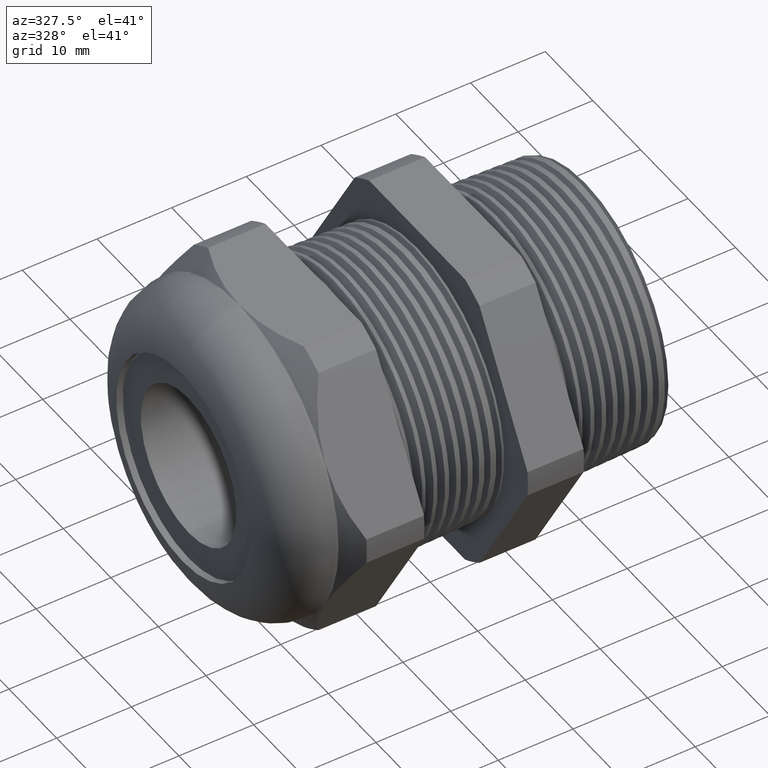
[diagram: clean part render]
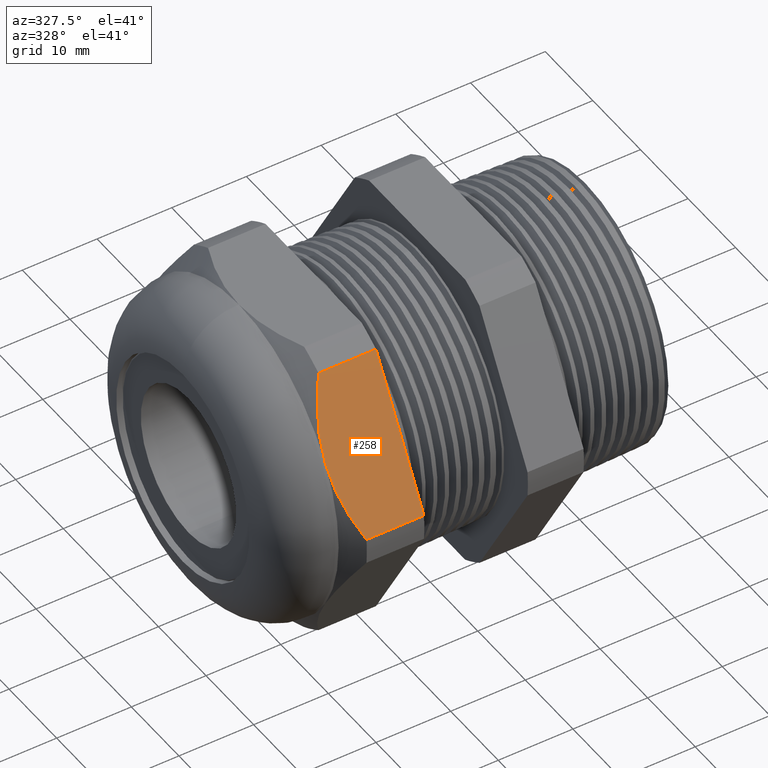
[diagram: same view with one face highlighted and labeled with its STEP entity id]
A machine part, auxiliary view. The second image highlights one B-rep face of the part: STEP entity #258.
In plain terms, the highlighted planar face has unit normal (0, -0.866, 0.5).
Its self-contained STEP definition (entity closure, byte-faithful):
#210 = VERTEX_POINT ( 'NONE', #1764 ) ;
#245 = ORIENTED_EDGE ( 'NONE', *, *, #691, .T. ) ;
#253 = EDGE_CURVE ( 'NONE', #304, #210, #1858, .T. ) ;
#254 = EDGE_LOOP ( 'NONE', ( #255, #256, #245, #672, #661 ) ) ;
#255 = ORIENTED_EDGE ( 'NONE', *, *, #368, .T. ) ;
#256 = ORIENTED_EDGE ( 'NONE', *, *, #253, .T. ) ;
#258 = ADVANCED_FACE ( 'NONE', ( #1857 ), #1841, .T. ) ;
#289 = VERTEX_POINT ( 'NONE', #1951 ) ;
#304 = VERTEX_POINT ( 'NONE', #1982 ) ;
#368 = EDGE_CURVE ( 'NONE', #289, #304, #2056, .T. ) ;
#661 = ORIENTED_EDGE ( 'NONE', *, *, #689, .F. ) ;
#670 = VERTEX_POINT ( 'NONE', #2637 ) ;
#672 = ORIENTED_EDGE ( 'NONE', *, *, #676, .F. ) ;
#675 = VERTEX_POINT ( 'NONE', #2631 ) ;
#676 = EDGE_CURVE ( 'NONE', #670, #675, #2692, .T. ) ;
#689 = EDGE_CURVE ( 'NONE', #289, #670, #2723, .T. ) ;
#691 = EDGE_CURVE ( 'NONE', #210, #675, #2719, .T. ) ;
#1764 = CARTESIAN_POINT ( 'NONE',  ( -1.544724409448818800, -0.7144709581221622100, 0.4124999999999999200 ) ) ;
#1827 = DIRECTION ( 'NONE',  ( 0.0000000000000000000, -0.4999999999999998300, -0.8660254037844388200 ) ) ;
#1828 = DIRECTION ( 'NONE',  ( 0.0000000000000000000, -0.8660254037844388200, 0.4999999999999998300 ) ) ;
#1829 = CARTESIAN_POINT ( 'NONE',  ( 0.2800000000000000300, -0.9132000843845193800, 0.06829105636982620000 ) ) ;
#1830 = CARTESIAN_POINT ( 'NONE',  ( -1.544724409448818800, -0.7144709581221622100, 0.4124999999999999200 ) ) ;
#1831 = CARTESIAN_POINT ( 'NONE',  ( -1.544724409448818800, -0.7058686793890305300, 0.4273995838266527700 ) ) ;
#1832 = CARTESIAN_POINT ( 'NONE',  ( -1.544180023244014800, -0.6971877207736741900, 0.4424354452068529100 ) ) ;
#1833 = CARTESIAN_POINT ( 'NONE',  ( -1.542017830737548700, -0.6799402181191401800, 0.4723089961081851100 ) ) ;
#1834 = CARTESIAN_POINT ( 'NONE',  ( -1.540407094865047500, -0.6713824640496751700, 0.4871314609551776800 ) ) ;
#1835 = CARTESIAN_POINT ( 'NONE',  ( -1.534081869582212700, -0.6458952435726335000, 0.5312766217651238000 ) ) ;
#1836 = CARTESIAN_POINT ( 'NONE',  ( -1.527873897119453900, -0.6291518768872981200, 0.5602769835538802300 ) ) ;
#1837 = CARTESIAN_POINT ( 'NONE',  ( -1.504100495182841200, -0.5795634430641815000, 0.6461666704032857900 ) ) ;
#1838 = CARTESIAN_POINT ( 'NONE',  ( -1.481417170283923800, -0.5473561059063408700, 0.7019514147371662700 ) ) ;
#1839 = CARTESIAN_POINT ( 'NONE',  ( -1.453974409448819200, -0.5157418318598047100, 0.7567089436301734900 ) ) ;
#1840 = AXIS2_PLACEMENT_3D ( 'NONE', #1829, #1828, #1827 ) ;
#1841 = PLANE ( 'NONE',  #1840 ) ;
#1857 = FACE_OUTER_BOUND ( 'NONE', #254, .T. ) ;
#1858 = B_SPLINE_CURVE_WITH_KNOTS ( 'NONE', 3,
 ( #1839, #1838, #1837, #1836, #1835, #1834, #1833, #1832, #1831, #1830 ),
 .UNSPECIFIED., .F., .F.,
 ( 4, 2, 2, 2, 4 ),
 ( 2.483247851884477100E-007, 0.005180948890086913400, 0.007771299172737776900, 0.009066474314063207400, 0.01036164945538863900 ),
 .UNSPECIFIED. ) ;
#1951 = CARTESIAN_POINT ( 'NONE',  ( -1.151023622047244100, -0.5157418318598047100, 0.7567089436301734900 ) ) ;
#1982 = CARTESIAN_POINT ( 'NONE',  ( -1.453974409448819200, -0.5157418318598047100, 0.7567089436301734900 ) ) ;
#2053 = DIRECTION ( 'NONE',  ( -1.000000000000000000, 0.0000000000000000000, 0.0000000000000000000 ) ) ;
#2054 = VECTOR ( 'NONE', #2053, 39.37007874015748100 ) ;
#2055 = CARTESIAN_POINT ( 'NONE',  ( 0.2800000000000000300, -0.5157418318598047100, 0.7567089436301734900 ) ) ;
#2056 = LINE ( 'NONE', #2055, #2054 ) ;
#2631 = CARTESIAN_POINT ( 'NONE',  ( -1.453974409448819200, -0.9132000843845194900, 0.06829105636982570100 ) ) ;
#2637 = CARTESIAN_POINT ( 'NONE',  ( -1.151023622047244100, -0.9132000843845194900, 0.06829105636982570100 ) ) ;
#2689 = DIRECTION ( 'NONE',  ( -1.000000000000000000, 0.0000000000000000000, 0.0000000000000000000 ) ) ;
#2690 = VECTOR ( 'NONE', #2689, 39.37007874015748100 ) ;
#2691 = CARTESIAN_POINT ( 'NONE',  ( 0.2800000000000000300, -0.9132000843845194900, 0.06829105636982570100 ) ) ;
#2692 = LINE ( 'NONE', #2691, #2690 ) ;
#2711 = CARTESIAN_POINT ( 'NONE',  ( -1.453974409448819200, -0.9132000843845194900, 0.06829105636982570100 ) ) ;
#2712 = CARTESIAN_POINT ( 'NONE',  ( -1.481451138322201100, -0.8815466788935424300, 0.1231163629127782300 ) ) ;
#2713 = CARTESIAN_POINT ( 'NONE',  ( -1.504454367446969700, -0.8488306607340111400, 0.1797821685864319800 ) ) ;
#2714 = CARTESIAN_POINT ( 'NONE',  ( -1.536043178441334400, -0.7825559566388159400, 0.2945733233359038600 ) ) ;
#2715 = CARTESIAN_POINT ( 'NONE',  ( -1.544724409448818400, -0.7488564788623134300, 0.3529425310333434400 ) ) ;
#2716 = CARTESIAN_POINT ( 'NONE',  ( -1.544724409448818800, -0.7144709581221622100, 0.4124999999999999200 ) ) ;
#2719 = B_SPLINE_CURVE_WITH_KNOTS ( 'NONE', 3,
 ( #2716, #2715, #2714, #2713, #2712, #2711 ),
 .UNSPECIFIED., .F., .F.,
 ( 4, 2, 4 ),
 ( 0.01036164945538863900, 0.01553879763505034200, 0.02071594581471204700 ),
 .UNSPECIFIED. ) ;
#2720 = DIRECTION ( 'NONE',  ( 0.0000000000000000000, -0.4999999999999998300, -0.8660254037844388200 ) ) ;
#2721 = VECTOR ( 'NONE', #2720, 39.37007874015748100 ) ;
#2722 = CARTESIAN_POINT ( 'NONE',  ( -1.151023622047244100, -0.5307209581221621300, 0.7307643358907810500 ) ) ;
#2723 = LINE ( 'NONE', #2722, #2721 ) ;